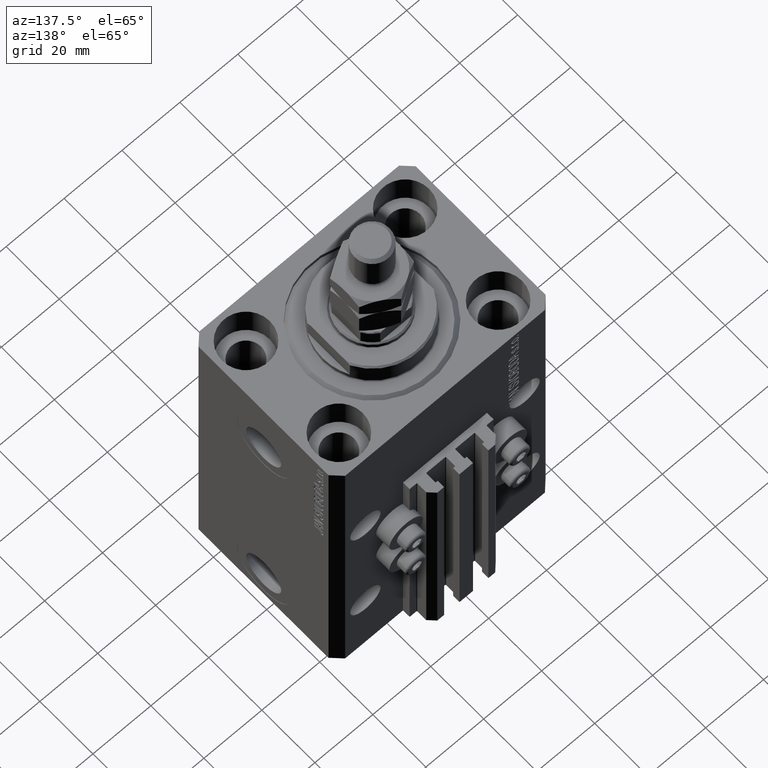
[diagram: clean part render]
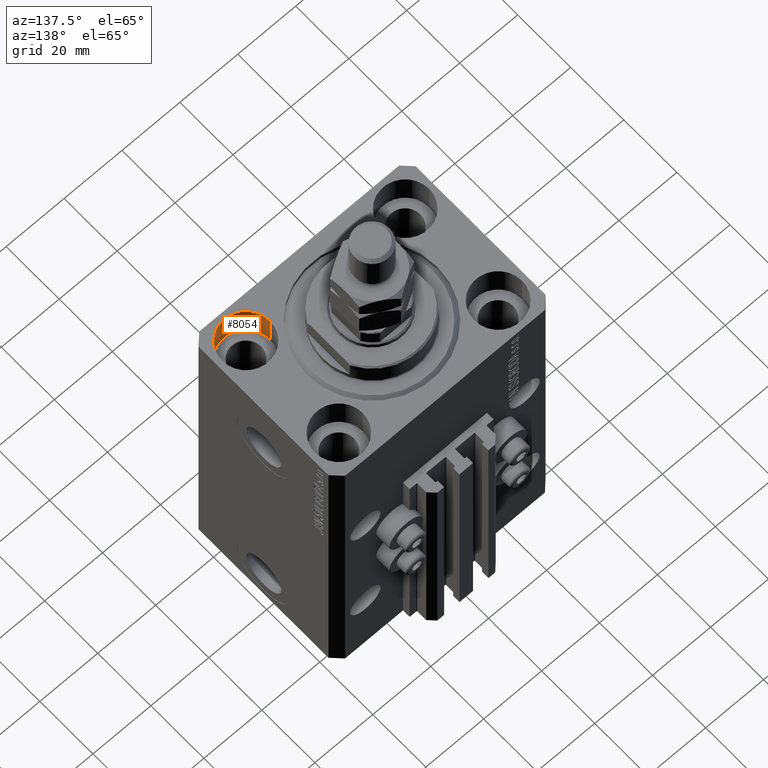
[diagram: same view with one face highlighted and labeled with its STEP entity id]
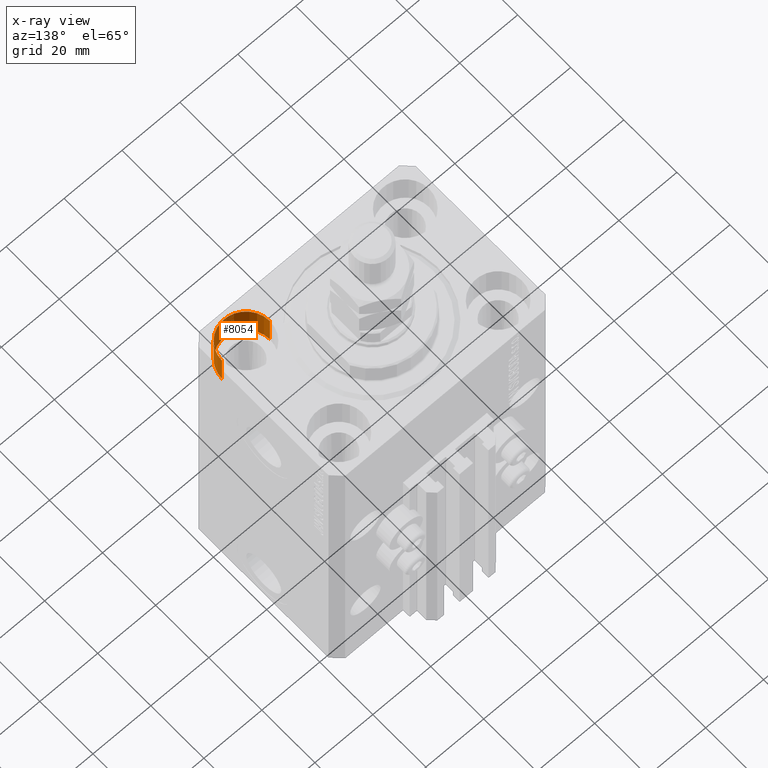
[diagram: x-ray of the same camera — body ghosted, the highlighted face saturated]
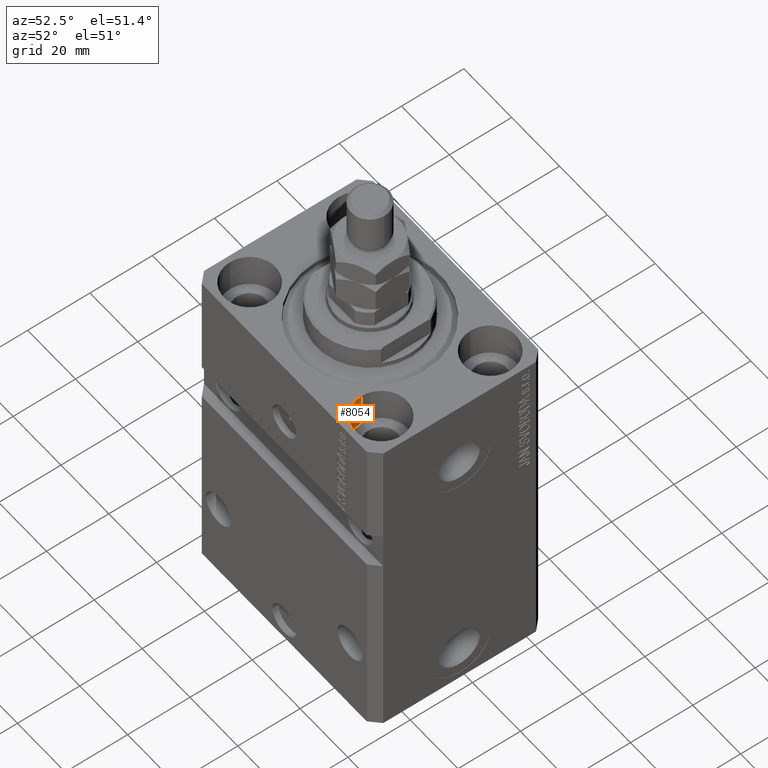
[diagram: same view with one face highlighted and labeled with its STEP entity id]
A machine part, auxiliary view. The second image highlights one B-rep face of the part: STEP entity #8054.
The next image is the same camera in x-ray: the body ghosted, the highlighted face saturated — about 0% of this face is hidden behind the body in this view.
A second angle (auxiliary view) of the same face is appended — the face is thin or edge-on in the first view.
In plain terms, the highlighted cylindrical surface (edge-blend (fillet) strip) has radius 8.25 mm, axis along (0, 0, 1).
Its self-contained STEP definition (entity closure, byte-faithful):
#911 = CARTESIAN_POINT ( 'NONE',  ( 35.75000000000000711, -17.50000000000000000, -11.00000000000000000 ) ) ;
#1498 = CIRCLE ( 'NONE', #45790, 8.250000000000000000 ) ;
#1869 = DIRECTION ( 'NONE',  ( 1.000000000000000000, 0.000000000000000000, 0.000000000000000000 ) ) ;
#2966 = EDGE_CURVE ( 'NONE', #7927, #11544, #33526, .T. ) ;
#4936 = ORIENTED_EDGE ( 'NONE', *, *, #48794, .T. ) ;
#5958 = EDGE_LOOP ( 'NONE', ( #39996, #46878, #4936, #32922 ) ) ;
#7927 = VERTEX_POINT ( 'NONE', #17291 ) ;
#8054 = ADVANCED_FACE ( 'NONE', ( #34576 ), #23666, .F. ) ;
#8125 = DIRECTION ( 'NONE',  ( 1.000000000000000000, 0.000000000000000000, 0.000000000000000000 ) ) ;
#8418 = AXIS2_PLACEMENT_3D ( 'NONE', #31332, #35795, #1869 ) ;
#10447 = VERTEX_POINT ( 'NONE', #11202 ) ;
#11202 = CARTESIAN_POINT ( 'NONE',  ( 35.75000000000000711, -17.50000000000000000, 0.000000000000000000 ) ) ;
#11544 = VERTEX_POINT ( 'NONE', #18081 ) ;
#13700 = EDGE_CURVE ( 'NONE', #7927, #40534, #18772, .T. ) ;
#15993 = CARTESIAN_POINT ( 'NONE',  ( 27.50000000000000355, -17.50000000000000000, 0.000000000000000000 ) ) ;
#17291 = CARTESIAN_POINT ( 'NONE',  ( 19.25000000000000000, -17.50000000000000000, -11.00000000000000000 ) ) ;
#18081 = CARTESIAN_POINT ( 'NONE',  ( 19.25000000000000000, -17.50000000000000000, 0.000000000000000000 ) ) ;
#18772 = CIRCLE ( 'NONE', #19575, 8.250000000000000000 ) ;
#19575 = AXIS2_PLACEMENT_3D ( 'NONE', #38331, #38098, #8125 ) ;
#23666 = CYLINDRICAL_SURFACE ( 'NONE', #8418, 8.250000000000000000 ) ;
#23689 = DIRECTION ( 'NONE',  ( -0.000000000000000000, -0.000000000000000000, 1.000000000000000000 ) ) ;
#24023 = VECTOR ( 'NONE', #48625, 1000.000000000000000 ) ;
#25931 = VECTOR ( 'NONE', #23689, 1000.000000000000000 ) ;
#27391 = LINE ( 'NONE', #911, #25931 ) ;
#31332 = CARTESIAN_POINT ( 'NONE',  ( 27.50000000000000355, -17.50000000000000000, -11.00000000000000000 ) ) ;
#32922 = ORIENTED_EDGE ( 'NONE', *, *, #34659, .F. ) ;
#33322 = CARTESIAN_POINT ( 'NONE',  ( 35.75000000000000711, -17.50000000000000000, -11.00000000000000000 ) ) ;
#33526 = LINE ( 'NONE', #36515, #24023 ) ;
#34576 = FACE_OUTER_BOUND ( 'NONE', #5958, .T. ) ;
#34659 = EDGE_CURVE ( 'NONE', #40534, #10447, #27391, .T. ) ;
#35050 = DIRECTION ( 'NONE',  ( 0.000000000000000000, 0.000000000000000000, 1.000000000000000000 ) ) ;
#35795 = DIRECTION ( 'NONE',  ( -0.000000000000000000, -0.000000000000000000, 1.000000000000000000 ) ) ;
#36515 = CARTESIAN_POINT ( 'NONE',  ( 19.25000000000000000, -17.50000000000000000, -11.00000000000000000 ) ) ;
#38098 = DIRECTION ( 'NONE',  ( 0.000000000000000000, 0.000000000000000000, 1.000000000000000000 ) ) ;
#38331 = CARTESIAN_POINT ( 'NONE',  ( 27.50000000000000355, -17.50000000000000000, -11.00000000000000000 ) ) ;
#39996 = ORIENTED_EDGE ( 'NONE', *, *, #13700, .F. ) ;
#40534 = VERTEX_POINT ( 'NONE', #33322 ) ;
#45722 = DIRECTION ( 'NONE',  ( 1.000000000000000000, 0.000000000000000000, 0.000000000000000000 ) ) ;
#45790 = AXIS2_PLACEMENT_3D ( 'NONE', #15993, #35050, #45722 ) ;
#46878 = ORIENTED_EDGE ( 'NONE', *, *, #2966, .T. ) ;
#48625 = DIRECTION ( 'NONE',  ( -0.000000000000000000, -0.000000000000000000, 1.000000000000000000 ) ) ;
#48794 = EDGE_CURVE ( 'NONE', #11544, #10447, #1498, .T. ) ;